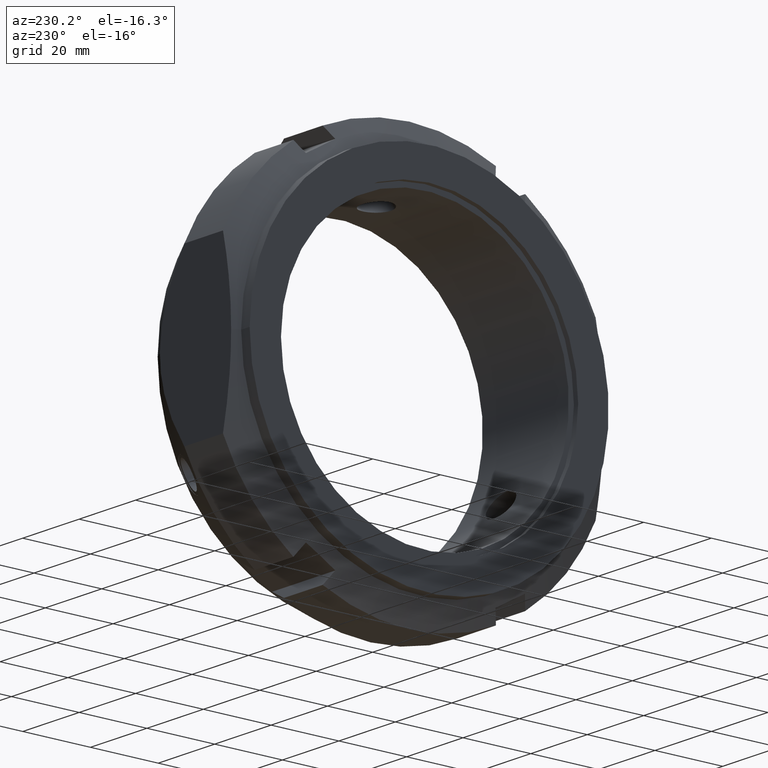
[diagram: clean part render]
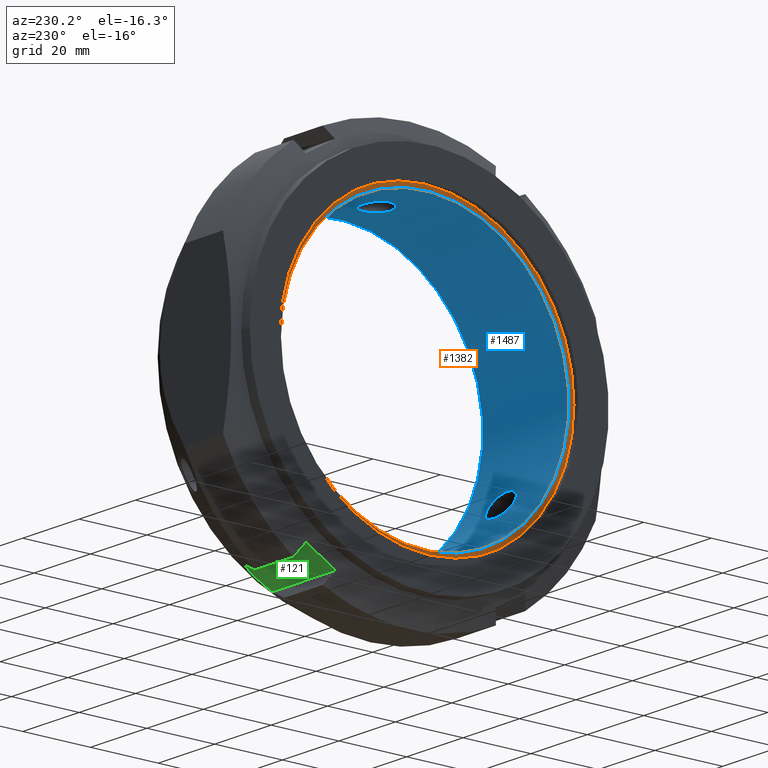
[diagram: same view with three faces highlighted in distinct colors, each labeled with its STEP entity id]
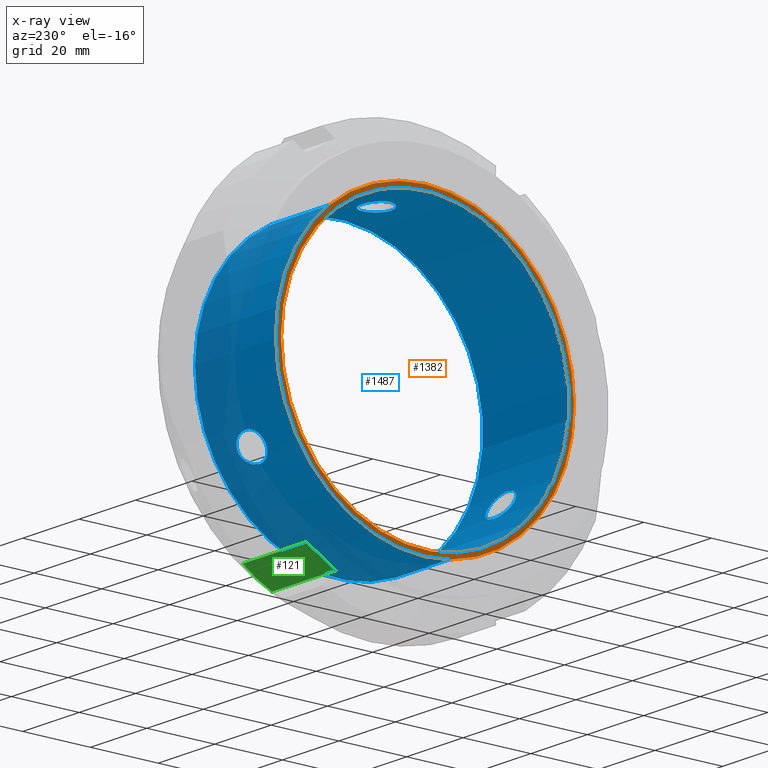
[diagram: x-ray of the same camera — body ghosted, the three highlighted faces saturated]
A machine part, auxiliary view with three faces highlighted in distinct colors.
The next image is the same camera in x-ray (body ghosted, the three faces saturated) — at least one of them is partly hidden behind the body in this view.
Their STEP definitions:

[orange] entity #1382 — the highlighted planar face has unit normal (-1, 0, 0).
#1355=CARTESIAN_POINT('',(1.499999999999988,43.25,0.0));
#1356=DIRECTION('',(-1.0,0.0,0.0));
#1357=DIRECTION('',(0.0,0.0,1.0));
#1358=AXIS2_PLACEMENT_3D('',#1355,#1356,#1357);
#1359=PLANE('',#1358);
#1360=CARTESIAN_POINT('',(1.499999999999988,44.0,0.0));
#1361=VERTEX_POINT('',#1360);
#1362=CARTESIAN_POINT('',(1.499999999999988,0.0,0.0));
#1363=DIRECTION('',(1.0,0.0,0.0));
#1364=DIRECTION('',(0.0,1.0,0.0));
#1365=AXIS2_PLACEMENT_3D('',#1362,#1363,#1364);
#1366=CIRCLE('',#1365,44.0);
#1367=EDGE_CURVE('',#1361,#1361,#1366,.T.);
#1368=ORIENTED_EDGE('',*,*,#1367,.F.);
#1369=EDGE_LOOP('',(#1368));
#1370=FACE_OUTER_BOUND('',#1369,.T.);
#1371=CARTESIAN_POINT('',(1.499999999999988,42.5,0.0));
#1372=VERTEX_POINT('',#1371);
#1373=CARTESIAN_POINT('',(1.499999999999988,0.0,0.0));
#1374=DIRECTION('',(1.0,0.0,0.0));
#1375=DIRECTION('',(0.0,1.0,0.0));
#1376=AXIS2_PLACEMENT_3D('',#1373,#1374,#1375);
#1377=CIRCLE('',#1376,42.5);
#1378=EDGE_CURVE('',#1372,#1372,#1377,.T.);
#1379=ORIENTED_EDGE('',*,*,#1378,.T.);
#1380=EDGE_LOOP('',(#1379));
#1381=FACE_BOUND('',#1380,.T.);
#1382=ADVANCED_FACE('',(#1370,#1381),#1359,.T.);

[blue] entity #1487 — the highlighted cylindrical surface (bore or boss wall) has radius 42.5 mm, axis along (1, 0, 0).
#1090=CARTESIAN_POINT('',(18.617962350149824,38.720943525224698,-17.519661312832497));
#1091=VERTEX_POINT('',#1090);
#1092=CARTESIAN_POINT('',(18.617962350149824,38.720943525224698,-17.519661312832497));
#1093=CARTESIAN_POINT('',(19.242535935894296,38.720943525224698,-17.519661312832497));
#1094=CARTESIAN_POINT('',(19.913274839819923,38.675693619005493,-17.620810060971497));
#1095=CARTESIAN_POINT('',(21.165224068937562,38.483965430218227,-18.035704286445402));
#1096=CARTESIAN_POINT('',(21.746499423863241,38.337118188527697,-18.34908286898461));
#1097=CARTESIAN_POINT('',(22.602661262870633,37.999590086561597,-19.036896275643155));
#1098=CARTESIAN_POINT('',(22.960245099423027,37.799206517985475,-19.434953832822618));
#1099=CARTESIAN_POINT('',(23.446159835550013,37.333964017916728,-20.314344088311017));
#1100=CARTESIAN_POINT('',(23.573272295291432,37.068254702331522,-20.79589950765785));
#1101=CARTESIAN_POINT('',(23.573272295291432,36.543904619345746,-21.704100492342185));
#1102=CARTESIAN_POINT('',(23.446159835550006,36.259720050653918,-22.174989219334556));
#1103=CARTESIAN_POINT('',(22.960245099423023,35.730766999594849,-23.017596171058475));
#1104=CARTESIAN_POINT('',(22.602661262870633,35.486230827197119,-23.390162210536115));
#1105=CARTESIAN_POINT('',(21.746499423863241,35.059330994950351,-24.026376824659174));
#1106=CARTESIAN_POINT('',(21.165224068937569,34.861360802314699,-24.310239557708453));
#1107=CARTESIAN_POINT('',(19.91327483981992,34.597915957564467,-24.68372815255676));
#1108=CARTESIAN_POINT('',(19.242535935894299,34.532943525224688,-24.773490094930956));
#1109=CARTESIAN_POINT('',(18.017306200723734,34.532943525224688,-24.773490094930956));
#1110=CARTESIAN_POINT('',(17.370911814085293,34.593430526387777,-24.689955205556107));
#1111=CARTESIAN_POINT('',(16.171807847128157,34.849575212317887,-24.327071978618314));
#1112=CARTESIAN_POINT('',(15.619293056916725,35.045131230601783,-24.047008603789713));
#1113=CARTESIAN_POINT('',(14.803137215268574,35.474469600150385,-23.408116183705836));
#1114=CARTESIAN_POINT('',(14.465899155382488,35.724460087320594,-23.027520154546647));
#1115=CARTESIAN_POINT('',(14.015026835697451,36.260202242252298,-22.174342520539764));
#1116=CARTESIAN_POINT('',(13.901500585826811,36.54546537713513,-21.701397180552668));
#1117=CARTESIAN_POINT('',(13.901500585826811,37.066693944542138,-20.798602819447375));
#1118=CARTESIAN_POINT('',(14.015026835697448,37.333645056131026,-20.315085027882112));
#1119=CARTESIAN_POINT('',(14.465899155382481,37.804647483655828,-19.424529894829607));
#1120=CARTESIAN_POINT('',(14.803137215268563,38.009258069902067,-19.017733767656154));
#1121=CARTESIAN_POINT('',(15.619293056916712,38.347885951205718,-18.326469622765732));
#1122=CARTESIAN_POINT('',(16.171807847128143,38.492649939334953,-18.017081455654647));
#1123=CARTESIAN_POINT('',(17.370911814085282,38.6788436895053,-17.613812037125879));
#1124=CARTESIAN_POINT('',(18.017306200723734,38.720943525224698,-17.519661312832497));
#1125=CARTESIAN_POINT('',(18.617962350149824,38.720943525224698,-17.519661312832497));
#1126=B_SPLINE_CURVE_WITH_KNOTS('',3,(#1092,#1093,#1094,#1095,#1096,#1097,#1098,#1099,#1100,#1101,#1102,#1103,#1104,#1105,#1106,#1107,#1108,#1109,#1110,#1111,#1112,#1113,#1114,#1115,#1116,#1117,#1118,#1119,#1120,#1121,#1122,#1123,#1124,#1125),.UNSPECIFIED.,.T.,.U.,(4,2,2,2,2,2,2,2,2,2,2,2,2,2,2,2,4),(0.0,0.187372075723342,0.374744151446684,0.532049176342418,0.689354201238153,0.846659226133888,1.003964251029623,1.191336326752965,1.378708402476307,1.558905247304133,1.73910209213196,1.895470662354065,2.05183923257617,2.208207802798274,2.364576373020379,2.544773217848206,2.724970062676033),.UNSPECIFIED.);
#1127=EDGE_CURVE('',#1091,#1091,#1126,.T.);
#1180=CARTESIAN_POINT('',(18.617962350149831,-34.532943525224709,-24.773490094930924));
#1181=VERTEX_POINT('',#1180);
#1182=CARTESIAN_POINT('',(18.617962350149831,-34.532943525224709,-24.773490094930924));
#1183=CARTESIAN_POINT('',(19.242535935894303,-34.532943525224709,-24.773490094930924));
#1184=CARTESIAN_POINT('',(19.913274839819934,-34.597915957564489,-24.683728152556736));
#1185=CARTESIAN_POINT('',(21.165224068937576,-34.861360802314721,-24.310239557708432));
#1186=CARTESIAN_POINT('',(21.746499423863249,-35.059330994950372,-24.026376824659149));
#1187=CARTESIAN_POINT('',(22.60266126287064,-35.486230827197133,-23.390162210536086));
#1188=CARTESIAN_POINT('',(22.96024509942303,-35.730766999594863,-23.01759617105845));
#1189=CARTESIAN_POINT('',(23.446159835550016,-36.259720050653932,-22.174989219334535));
#1190=CARTESIAN_POINT('',(23.573272295291435,-36.54390461934576,-21.704100492342157));
#1191=CARTESIAN_POINT('',(23.573272295291435,-37.081024009314966,-20.773782419185093));
#1192=CARTESIAN_POINT('',(23.433709605421775,-37.357743194340102,-20.271018588498848));
#1193=CARTESIAN_POINT('',(22.90570252707699,-37.837927482517784,-19.359917704472302));
#1194=CARTESIAN_POINT('',(22.518528060353574,-38.042358631761047,-18.951354552950804));
#1195=CARTESIAN_POINT('',(21.638097019090775,-38.366164843012058,-18.287584048892608));
#1196=CARTESIAN_POINT('',(21.072485619570138,-38.502002351308647,-17.996959384890058));
#1197=CARTESIAN_POINT('',(19.862075313614763,-38.679213263408549,-17.612870104094217));
#1198=CARTESIAN_POINT('',(19.2172475142476,-38.720943525224705,-17.519661312832461));
#1199=CARTESIAN_POINT('',(18.017306200723738,-38.720943525224705,-17.519661312832461));
#1200=CARTESIAN_POINT('',(17.370911814085289,-38.678843689505307,-17.61381203712585));
#1201=CARTESIAN_POINT('',(16.171807847128154,-38.49264993933496,-18.017081455654612));
#1202=CARTESIAN_POINT('',(15.619293056916725,-38.34788595120574,-18.3264696227657));
#1203=CARTESIAN_POINT('',(14.803137215268571,-38.009258069902081,-19.017733767656125));
#1204=CARTESIAN_POINT('',(14.465899155382488,-37.804647483655849,-19.424529894829575));
#1205=CARTESIAN_POINT('',(14.015026835697453,-37.33364505613104,-20.31508502788208));
#1206=CARTESIAN_POINT('',(13.901500585826813,-37.066693944542159,-20.798602819447343));
#1207=CARTESIAN_POINT('',(13.901500585826813,-36.545465377135137,-21.70139718055264));
#1208=CARTESIAN_POINT('',(14.015026835697448,-36.260202242252312,-22.174342520539732));
#1209=CARTESIAN_POINT('',(14.465899155382482,-35.724460087320615,-23.027520154546611));
#1210=CARTESIAN_POINT('',(14.803137215268576,-35.474469600150407,-23.408116183705804));
#1211=CARTESIAN_POINT('',(15.619293056916725,-35.045131230601797,-24.047008603789681));
#1212=CARTESIAN_POINT('',(16.171807847128157,-34.849575212317909,-24.327071978618289));
#1213=CARTESIAN_POINT('',(17.370911814085293,-34.593430526387792,-24.689955205556082));
#1214=CARTESIAN_POINT('',(18.017306200723745,-34.532943525224709,-24.773490094930924));
#1215=CARTESIAN_POINT('',(18.617962350149831,-34.532943525224709,-24.773490094930924));
#1216=B_SPLINE_CURVE_WITH_KNOTS('',3,(#1182,#1183,#1184,#1185,#1186,#1187,#1188,#1189,#1190,#1191,#1192,#1193,#1194,#1195,#1196,#1197,#1198,#1199,#1200,#1201,#1202,#1203,#1204,#1205,#1206,#1207,#1208,#1209,#1210,#1211,#1212,#1213,#1214,#1215),.UNSPECIFIED.,.T.,.U.,(4,2,2,2,2,2,2,2,2,2,2,2,2,2,2,2,4),(0.0,0.187372075723342,0.374744151446684,0.532049176342419,0.689354201238153,0.854320810323942,1.019287419409731,1.199072968639064,1.378858517868396,1.559055362696222,1.739252207524049,1.895620777746154,2.051989347968259,2.208357918190363,2.364726488412468,2.544923333240295,2.725120178068122),.UNSPECIFIED.);
#1217=EDGE_CURVE('',#1181,#1181,#1216,.T.);
#1270=CARTESIAN_POINT('',(18.617962350149831,-4.188000000000001,42.293151407763403));
#1271=VERTEX_POINT('',#1270);
#1272=CARTESIAN_POINT('',(18.617962350149831,-4.188000000000001,42.293151407763403));
#1273=CARTESIAN_POINT('',(19.242535935894303,-4.188000000000001,42.293151407763403));
#1274=CARTESIAN_POINT('',(19.913274839819927,-4.077777661441031,42.304538213528218));
#1275=CARTESIAN_POINT('',(21.165224068937562,-3.622604627903528,42.345943844153815));
#1276=CARTESIAN_POINT('',(21.746499423863241,-3.277787193577346,42.375459693643748));
#1277=CARTESIAN_POINT('',(22.602661262870633,-2.513359259364478,42.427058486179234));
#1278=CARTESIAN_POINT('',(22.960245099423023,-2.068439518390624,42.452550003881065));
#1279=CARTESIAN_POINT('',(23.446159835550006,-1.07424396726281,42.489333307645552));
#1280=CARTESIAN_POINT('',(23.573272295291432,-0.524350082985782,42.5));
#1281=CARTESIAN_POINT('',(23.573272295291432,0.524350082985783,42.5));
#1282=CARTESIAN_POINT('',(23.446159835550006,1.074243967262812,42.489333307645552));
#1283=CARTESIAN_POINT('',(22.960245099423023,2.068439518390625,42.452550003881065));
#1284=CARTESIAN_POINT('',(22.602661262870633,2.513359259364478,42.427058486179234));
#1285=CARTESIAN_POINT('',(21.746499423863241,3.277787193577347,42.375459693643748));
#1286=CARTESIAN_POINT('',(21.165224068937562,3.622604627903528,42.345943844153815));
#1287=CARTESIAN_POINT('',(19.913274839819927,4.07777766144103,42.304538213528218));
#1288=CARTESIAN_POINT('',(19.242535935894303,4.188,42.293151407763403));
#1289=CARTESIAN_POINT('',(18.017306200723738,4.188,42.293151407763403));
#1290=CARTESIAN_POINT('',(17.370911814085289,4.085413163117524,42.303767242681943));
#1291=CARTESIAN_POINT('',(16.171807847128154,3.643074727017062,42.344153434272911));
#1292=CARTESIAN_POINT('',(15.619293056916725,3.302754720603946,42.373478226555399));
#1293=CARTESIAN_POINT('',(14.803137215268571,2.534788469751683,42.425849951361947));
#1294=CARTESIAN_POINT('',(14.465899155382481,2.080187396335231,42.452050049376211));
#1295=CARTESIAN_POINT('',(14.015026835697448,1.073442813878724,42.489427548421837));
#1296=CARTESIAN_POINT('',(13.901500585826817,0.521228567407016,42.5));
#1297=CARTESIAN_POINT('',(13.901500585826817,-0.521228567407016,42.5));
#1298=CARTESIAN_POINT('',(14.015026835697448,-1.073442813878724,42.489427548421837));
#1299=CARTESIAN_POINT('',(14.465899155382481,-2.080187396335231,42.452050049376211));
#1300=CARTESIAN_POINT('',(14.803137215268571,-2.534788469751683,42.425849951361947));
#1301=CARTESIAN_POINT('',(15.619293056916725,-3.302754720603944,42.373478226555399));
#1302=CARTESIAN_POINT('',(16.171807847128154,-3.643074727017062,42.344153434272911));
#1303=CARTESIAN_POINT('',(17.370911814085289,-4.085413163117524,42.303767242681943));
#1304=CARTESIAN_POINT('',(18.017306200723745,-4.188,42.293151407763403));
#1305=CARTESIAN_POINT('',(18.617962350149835,-4.188,42.293151407763403));
#1306=B_SPLINE_CURVE_WITH_KNOTS('',3,(#1272,#1273,#1274,#1275,#1276,#1277,#1278,#1279,#1280,#1281,#1282,#1283,#1284,#1285,#1286,#1287,#1288,#1289,#1290,#1291,#1292,#1293,#1294,#1295,#1296,#1297,#1298,#1299,#1300,#1301,#1302,#1303,#1304,#1305),.UNSPECIFIED.,.T.,.U.,(4,2,2,2,2,2,2,2,2,2,2,2,2,2,2,2,4),(0.0,0.187372075723342,0.374744151446683,0.532049176342418,0.689354201238153,0.846659226133888,1.003964251029622,1.191336326752964,1.378708402476306,1.558905247304133,1.739102092131959,1.895470662354064,2.051839232576169,2.208207802798273,2.364576373020378,2.544773217848205,2.724970062676031),.UNSPECIFIED.);
#1307=EDGE_CURVE('',#1271,#1271,#1306,.T.);
#1371=CARTESIAN_POINT('',(1.499999999999988,42.5,0.0));
#1372=VERTEX_POINT('',#1371);
#1373=CARTESIAN_POINT('',(1.499999999999988,0.0,0.0));
#1374=DIRECTION('',(1.0,0.0,0.0));
#1375=DIRECTION('',(0.0,1.0,0.0));
#1376=AXIS2_PLACEMENT_3D('',#1373,#1374,#1375);
#1377=CIRCLE('',#1376,42.5);
#1378=EDGE_CURVE('',#1372,#1372,#1377,.T.);
#1455=CARTESIAN_POINT('',(31.999999999999989,42.5,0.0));
#1456=VERTEX_POINT('',#1455);
#1457=CARTESIAN_POINT('',(31.999999999999989,0.0,0.0));
#1458=DIRECTION('',(1.0,0.0,0.0));
#1459=DIRECTION('',(0.0,1.0,0.0));
#1460=AXIS2_PLACEMENT_3D('',#1457,#1458,#1459);
#1461=CIRCLE('',#1460,42.5);
#1462=EDGE_CURVE('',#1456,#1456,#1461,.T.);
#1467=CARTESIAN_POINT('',(16.749999999999986,0.0,0.0));
#1468=DIRECTION('',(1.0,0.0,0.0));
#1469=DIRECTION('',(0.0,1.0,0.0));
#1470=AXIS2_PLACEMENT_3D('',#1467,#1468,#1469);
#1471=CYLINDRICAL_SURFACE('',#1470,42.5);
#1472=ORIENTED_EDGE('',*,*,#1378,.F.);
#1473=EDGE_LOOP('',(#1472));
#1474=FACE_OUTER_BOUND('',#1473,.T.);
#1475=ORIENTED_EDGE('',*,*,#1127,.T.);
#1476=EDGE_LOOP('',(#1475));
#1477=FACE_BOUND('',#1476,.T.);
#1478=ORIENTED_EDGE('',*,*,#1217,.T.);
#1479=EDGE_LOOP('',(#1478));
#1480=FACE_BOUND('',#1479,.T.);
#1481=ORIENTED_EDGE('',*,*,#1307,.T.);
#1482=EDGE_LOOP('',(#1481));
#1483=FACE_BOUND('',#1482,.T.);
#1484=ORIENTED_EDGE('',*,*,#1462,.T.);
#1485=EDGE_LOOP('',(#1484));
#1486=FACE_BOUND('',#1485,.T.);
#1487=ADVANCED_FACE('',(#1474,#1477,#1480,#1483,#1486),#1471,.F.);

[green] entity #121 — the highlighted planar face has unit normal (0, 0.5, -0.866).
#68=CARTESIAN_POINT('',(0.0,23.669872981077802,-50.997422611928556));
#69=DIRECTION('',(0.0,0.5,-0.866025403784439));
#70=DIRECTION('',(0.0,0.866025403784439,0.5));
#71=AXIS2_PLACEMENT_3D('',#68,#69,#70);
#72=PLANE('',#71);
#73=CARTESIAN_POINT('',(4.860667812629503,32.330127018922198,-45.997422611928556));
#74=VERTEX_POINT('',#73);
#75=CARTESIAN_POINT('',(4.860667812629504,23.669872981077805,-50.997422611928556));
#76=VERTEX_POINT('',#75);
#77=CARTESIAN_POINT('',(4.860667812629503,32.330127018922198,-45.997422611928556));
#78=CARTESIAN_POINT('',(4.603943420992276,27.999999999969045,-48.497422611946426));
#79=CARTESIAN_POINT('',(4.860667812629504,23.669872981077805,-50.997422611928556));
#87=(BOUNDED_CURVE()B_SPLINE_CURVE(2,(#77,#78,#79),.UNSPECIFIED.,.F.,.U.)B_SPLINE_CURVE_WITH_KNOTS((3,3),(1.646619290352972,2.686201192086607),.UNSPECIFIED.)CURVE()GEOMETRIC_REPRESENTATION_ITEM()RATIONAL_B_SPLINE_CURVE((1.03365830991817,1.03777026151027,1.033658309918431))REPRESENTATION_ITEM(''));
#88=EDGE_CURVE('',#74,#76,#87,.T.);
#89=ORIENTED_EDGE('',*,*,#88,.F.);
#90=CARTESIAN_POINT('',(27.284021965895878,32.330127018922191,-45.997422611928556));
#91=VERTEX_POINT('',#90);
#92=CARTESIAN_POINT('',(4.860667812629503,32.330127018922191,-45.997422611928556));
#93=DIRECTION('',(1.0,0.0,0.0));
#94=VECTOR('',#93,22.423354153266381);
#95=LINE('',#92,#94);
#96=EDGE_CURVE('',#74,#91,#95,.T.);
#97=ORIENTED_EDGE('',*,*,#96,.T.);
#98=CARTESIAN_POINT('',(27.284021965895874,23.669872981077802,-50.997422611928556));
#99=VERTEX_POINT('',#98);
#100=CARTESIAN_POINT('',(27.284021965895874,23.669872981077802,-50.997422611928556));
#101=CARTESIAN_POINT('',(28.054195140832839,28.000000000000167,-48.497422611928449));
#102=CARTESIAN_POINT('',(27.284021965895878,32.330127018922191,-45.997422611928556));
#110=(BOUNDED_CURVE()B_SPLINE_CURVE(2,(#100,#101,#102),.UNSPECIFIED.,.F.,.U.)B_SPLINE_CURVE_WITH_KNOTS((3,3),(1.719837757912277,2.805645641681669),.UNSPECIFIED.)CURVE()GEOMETRIC_REPRESENTATION_ITEM()RATIONAL_B_SPLINE_CURVE((1.033658309918291,1.037770261510282,1.033658309918291))REPRESENTATION_ITEM(''));
#111=EDGE_CURVE('',#99,#91,#110,.T.);
#112=ORIENTED_EDGE('',*,*,#111,.F.);
#113=CARTESIAN_POINT('',(4.860667812629504,23.669872981077802,-50.997422611928556));
#114=DIRECTION('',(1.0,0.0,0.0));
#115=VECTOR('',#114,22.42335415326637);
#116=LINE('',#113,#115);
#117=EDGE_CURVE('',#76,#99,#116,.T.);
#118=ORIENTED_EDGE('',*,*,#117,.F.);
#119=EDGE_LOOP('',(#89,#97,#112,#118));
#120=FACE_OUTER_BOUND('',#119,.T.);
#121=ADVANCED_FACE('',(#120),#72,.T.);